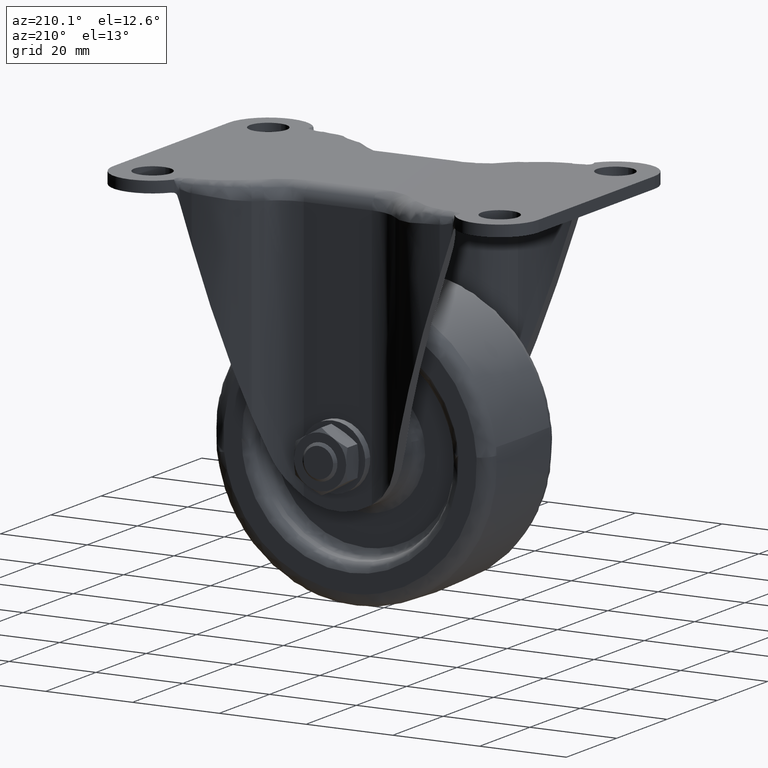
[diagram: clean part render]
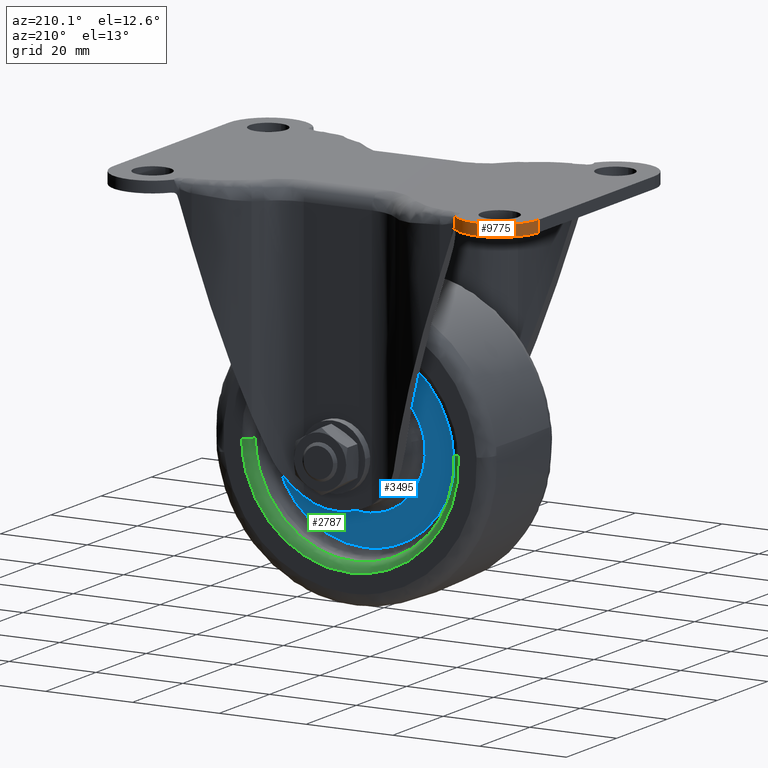
[diagram: same view with three faces highlighted in distinct colors, each labeled with its STEP entity id]
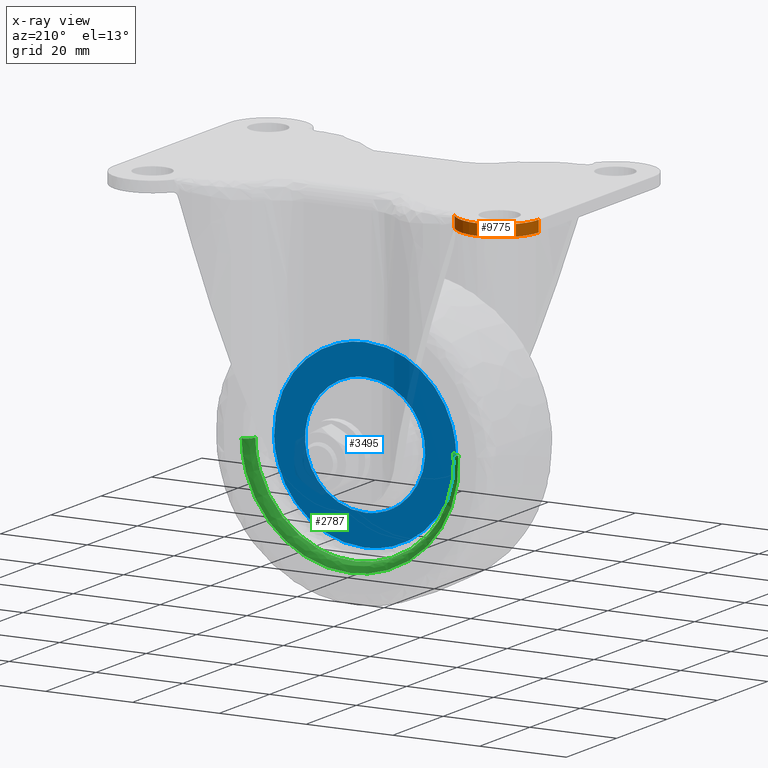
[diagram: x-ray of the same camera — body ghosted, the three highlighted faces saturated]
A machine part, auxiliary view with three faces highlighted in distinct colors.
The next image is the same camera in x-ray (body ghosted, the three faces saturated) — at least one of them is partly hidden behind the body in this view.
Their STEP definitions:

[orange] entity #9775 — the highlighted face is a freeform B-spline surface patch.
#4746=CARTESIAN_POINT('',(-32.376341283764802,27.783254136633801,0.0));
#4747=VERTEX_POINT('',#4746);
#7213=CARTESIAN_POINT('',(-32.764842154642949,28.352775125676100,-2.599999999999935));
#7214=VERTEX_POINT('',#7213);
#7220=CARTESIAN_POINT('',(-32.376341283764802,27.783254136633801,-2.678551643700455));
#7221=VERTEX_POINT('',#7220);
#7222=CARTESIAN_POINT('',(-32.376341283764802,27.783254136633801,-2.678551643700460));
#7223=CARTESIAN_POINT('',(-32.436704359270692,27.879462425141028,-2.653101375931688));
#7224=CARTESIAN_POINT('',(-32.499208282235280,27.975039823713480,-2.633665190367187));
#7225=CARTESIAN_POINT('',(-32.628639954083127,28.164876948345459,-2.607118698413021));
#7226=CARTESIAN_POINT('',(-32.695565976947741,28.259136694338469,-2.599999999999910));
#7227=CARTESIAN_POINT('',(-32.764842154642949,28.352775125676100,-2.599999999999910));
#7228=B_SPLINE_CURVE_WITH_KNOTS('',3,(#7222,#7223,#7224,#7225,#7226,#7227),.UNSPECIFIED.,.F.,.U.,(4,2,4),(0.0,0.500000000000000,1.0),.UNSPECIFIED.);
#7229=EDGE_CURVE('',#7221,#7214,#7228,.T.);
#9245=CARTESIAN_POINT('',(-49.000019999999999,23.0,-2.599999999999935));
#9246=VERTEX_POINT('',#9245);
#9247=CARTESIAN_POINT('',(-49.000019999999999,23.0,-2.599999999999935));
#9248=CARTESIAN_POINT('',(-49.000019999999999,29.509229023852267,-2.599999999999935));
#9249=CARTESIAN_POINT('',(-42.818122144332897,31.547414831638061,-2.599999999999935));
#9250=CARTESIAN_POINT('',(-36.636224288665801,33.585600639423838,-2.599999999999935));
#9251=CARTESIAN_POINT('',(-32.764842154643048,28.352775125676018,-2.599999999999935));
#9259=(BOUNDED_CURVE()B_SPLINE_CURVE(2,(#9247,#9248,#9249,#9250,#9251),.UNSPECIFIED.,.F.,.U.)B_SPLINE_CURVE_WITH_KNOTS((3,2,3),(0.0,0.500000000000000,1.0),.UNSPECIFIED.)CURVE()GEOMETRIC_REPRESENTATION_ITEM()RATIONAL_B_SPLINE_CURVE((1.0,0.810284660005801,1.0,0.810284660005801,1.0))REPRESENTATION_ITEM(''));
#9260=EDGE_CURVE('',#9246,#7214,#9259,.T.);
#9387=CARTESIAN_POINT('',(-49.000019999999999,23.0,0.0));
#9388=VERTEX_POINT('',#9387);
#9389=CARTESIAN_POINT('',(-49.000019999999999,23.0,0.0));
#9390=CARTESIAN_POINT('',(-49.000020000000006,29.775523146540504,0.0));
#9391=CARTESIAN_POINT('',(-42.488683337218028,31.649078262681329,0.0));
#9392=CARTESIAN_POINT('',(-35.977346674436063,33.522633378822171,0.0));
#9393=CARTESIAN_POINT('',(-32.376341283764802,27.783254136633801,0.0));
#9401=(BOUNDED_CURVE()B_SPLINE_CURVE(2,(#9389,#9390,#9391,#9392,#9393),.UNSPECIFIED.,.F.,.U.)B_SPLINE_CURVE_WITH_KNOTS((3,2,3),(0.0,0.500000000000000,1.0),.UNSPECIFIED.)CURVE()GEOMETRIC_REPRESENTATION_ITEM()RATIONAL_B_SPLINE_CURVE((1.0,0.798911180476210,1.0,0.798911180476210,1.0))REPRESENTATION_ITEM(''));
#9402=EDGE_CURVE('',#9388,#4747,#9401,.T.);
#9735=CARTESIAN_POINT('',(-49.000019999999999,23.0,-2.599999999999935));
#9736=CARTESIAN_POINT('',(-49.000019999999999,23.0,0.0));
#9737=QUASI_UNIFORM_CURVE('',1,(#9735,#9736),.UNSPECIFIED.,.F.,.U.);
#9738=EDGE_CURVE('',#9246,#9388,#9737,.T.);
#9746=CARTESIAN_POINT('',(-48.996489015596701,22.747918165255001,-2.745515434792966));
#9747=CARTESIAN_POINT('',(-48.996489015596701,22.747918165255001,0.068637885869824));
#9748=CARTESIAN_POINT('',(-49.197003960892403,29.904032743449871,-2.745515434792966));
#9749=CARTESIAN_POINT('',(-49.197003960892403,29.904032743449871,0.068637885869824));
#9750=CARTESIAN_POINT('',(-42.269406184082072,31.709184023058508,-2.745515434792966));
#9751=CARTESIAN_POINT('',(-42.269406184082072,31.709184023058508,0.068637885869824));
#9752=CARTESIAN_POINT('',(-35.341808407271714,33.514335302667128,-2.745515434792966));
#9753=CARTESIAN_POINT('',(-35.341808407271714,33.514335302667128,0.068637885869824));
#9754=CARTESIAN_POINT('',(-32.024552614048602,27.170362091668519,-2.745515434792966));
#9755=CARTESIAN_POINT('',(-32.024552614048602,27.170362091668519,0.068637885869824));
#9763=(BOUNDED_SURFACE()B_SPLINE_SURFACE(1,2,((#9746,#9748,#9750,#9752,#9754),(#9747,#9749,#9751,#9753,#9755)),.UNSPECIFIED.,.F.,.F.,.U.)B_SPLINE_SURFACE_WITH_KNOTS((2,2),(3,2,3),(0.0,2.814153320662790),(0.0,12.571762803175460,25.143525606350920),.UNSPECIFIED.)GEOMETRIC_REPRESENTATION_ITEM()RATIONAL_B_SPLINE_SURFACE(((1.0,0.782608156852414,1.0,0.782608156852414,1.0),(1.0,0.782608156852414,1.0,0.782608156852414,1.0)))REPRESENTATION_ITEM('')SURFACE());
#9764=CARTESIAN_POINT('',(-32.376341283764802,27.783254136633801,-2.678551643700455));
#9765=CARTESIAN_POINT('',(-32.376341283764802,27.783254136633801,0.0));
#9766=QUASI_UNIFORM_CURVE('',1,(#9764,#9765),.UNSPECIFIED.,.F.,.U.);
#9767=EDGE_CURVE('',#7221,#4747,#9766,.T.);
#9768=ORIENTED_EDGE('',*,*,#9767,.F.);
#9769=ORIENTED_EDGE('',*,*,#7229,.T.);
#9770=ORIENTED_EDGE('',*,*,#9260,.F.);
#9771=ORIENTED_EDGE('',*,*,#9738,.T.);
#9772=ORIENTED_EDGE('',*,*,#9402,.T.);
#9773=EDGE_LOOP('',(#9768,#9769,#9770,#9771,#9772));
#9774=FACE_OUTER_BOUND('',#9773,.T.);
#9775=ADVANCED_FACE('',(#9774),#9763,.T.);

[blue] entity #3495 — the highlighted face is a freeform B-spline surface patch.
#2872=CARTESIAN_POINT('',(-20.993367977213151,7.500000000000000,-53.972267995533471));
#2873=VERTEX_POINT('',#2872);
#2887=CARTESIAN_POINT('',(0.0,7.500000000000000,-75.500000000000000));
#2888=VERTEX_POINT('',#2887);
#2889=CARTESIAN_POINT('',(-20.993367977213154,7.500000000000000,-53.972267995533471));
#2890=CARTESIAN_POINT('',(-21.000000000000007,7.500000000000000,-54.236092325309514));
#2891=CARTESIAN_POINT('',(-21.0,7.500000000000000,-54.500000000000000));
#2892=CARTESIAN_POINT('',(-21.000000000000007,7.500000000000000,-75.500000000000014));
#2893=CARTESIAN_POINT('',(0.0,7.500000000000000,-75.500000000000000));
#2901=(BOUNDED_CURVE()B_SPLINE_CURVE(2,(#2889,#2890,#2891,#2892,#2893),.UNSPECIFIED.,.F.,.U.)B_SPLINE_CURVE_WITH_KNOTS((3,2,3),(0.745579891768149,0.750000000000000,1.0),.UNSPECIFIED.)CURVE()GEOMETRIC_REPRESENTATION_ITEM()RATIONAL_B_SPLINE_CURVE((0.989826157677828,0.994821521089878,1.0,0.707106781186547,1.0))REPRESENTATION_ITEM(''));
#2902=EDGE_CURVE('',#2873,#2888,#2901,.T.);
#2904=CARTESIAN_POINT('',(20.993367977213151,7.500000000000000,-55.027732004466529));
#2905=VERTEX_POINT('',#2904);
#2906=CARTESIAN_POINT('',(0.0,7.500000000000000,-75.500000000000000));
#2907=CARTESIAN_POINT('',(20.478735399599522,7.499999999999999,-75.500000000000000));
#2908=CARTESIAN_POINT('',(20.993367977213143,7.500000000000000,-55.027732004466529));
#2916=(BOUNDED_CURVE()B_SPLINE_CURVE(2,(#2906,#2907,#2908),.UNSPECIFIED.,.F.,.U.)B_SPLINE_CURVE_WITH_KNOTS((3,3),(0.0,0.245579891768150),.UNSPECIFIED.)CURVE()GEOMETRIC_REPRESENTATION_ITEM()RATIONAL_B_SPLINE_CURVE((1.0,0.712285260096670,0.989826157677828))REPRESENTATION_ITEM(''));
#2917=EDGE_CURVE('',#2888,#2905,#2916,.T.);
#2964=CARTESIAN_POINT('',(0.0,7.500000000000000,-33.500000000000000));
#2965=VERTEX_POINT('',#2964);
#2966=CARTESIAN_POINT('',(20.993367977213147,7.500000000000000,-55.027732004466529));
#2967=CARTESIAN_POINT('',(20.999999999999996,7.500000000000000,-54.763907674690486));
#2968=CARTESIAN_POINT('',(21.0,7.500000000000000,-54.500000000000000));
#2969=CARTESIAN_POINT('',(21.000000000000007,7.500000000000000,-33.500000000000000));
#2970=CARTESIAN_POINT('',(0.0,7.500000000000000,-33.500000000000000));
#2978=(BOUNDED_CURVE()B_SPLINE_CURVE(2,(#2966,#2967,#2968,#2969,#2970),.UNSPECIFIED.,.F.,.U.)B_SPLINE_CURVE_WITH_KNOTS((3,2,3),(0.245579891768149,0.250000000000000,0.500000000000000),.UNSPECIFIED.)CURVE()GEOMETRIC_REPRESENTATION_ITEM()RATIONAL_B_SPLINE_CURVE((0.989826157677828,0.994821521089878,1.0,0.707106781186547,1.0))REPRESENTATION_ITEM(''));
#2979=EDGE_CURVE('',#2905,#2965,#2978,.T.);
#2981=CARTESIAN_POINT('',(0.0,7.500000000000000,-33.500000000000000));
#2982=CARTESIAN_POINT('',(-20.478735399599401,7.500000000000000,-33.500000000000007));
#2983=CARTESIAN_POINT('',(-20.993367977213154,7.500000000000000,-53.972267995533471));
#2991=(BOUNDED_CURVE()B_SPLINE_CURVE(2,(#2981,#2982,#2983),.UNSPECIFIED.,.F.,.U.)B_SPLINE_CURVE_WITH_KNOTS((3,3),(0.500000000000000,0.745579891768148),.UNSPECIFIED.)CURVE()GEOMETRIC_REPRESENTATION_ITEM()RATIONAL_B_SPLINE_CURVE((1.0,0.712285260096671,0.989826157677826))REPRESENTATION_ITEM(''));
#2992=EDGE_CURVE('',#2965,#2873,#2991,.T.);
#3033=CARTESIAN_POINT('',(-4.930326382057424,7.500000000000108,-67.443941991830386));
#3034=VERTEX_POINT('',#3033);
#3035=CARTESIAN_POINT('',(0.0,7.500000000000000,-68.351128669312942));
#3036=VERTEX_POINT('',#3035);
#3037=CARTESIAN_POINT('',(-4.930326382057425,7.500000000000109,-67.443941991830400));
#3038=CARTESIAN_POINT('',(-2.548624973128256,7.499999999999999,-68.351128669312942));
#3039=CARTESIAN_POINT('',(0.0,7.500000000000000,-68.351128669312942));
#3047=(BOUNDED_CURVE()B_SPLINE_CURVE(2,(#3037,#3038,#3039),.UNSPECIFIED.,.F.,.U.)B_SPLINE_CURVE_WITH_KNOTS((3,3),(0.939552769405175,1.0),.UNSPECIFIED.)CURVE()GEOMETRIC_REPRESENTATION_ITEM()RATIONAL_B_SPLINE_CURVE((0.892609506672727,0.929181664250891,1.0))REPRESENTATION_ITEM(''));
#3048=EDGE_CURVE('',#3034,#3036,#3047,.T.);
#3068=CARTESIAN_POINT('',(-13.605786643651550,7.500000000000109,-51.904557392365753));
#3069=VERTEX_POINT('',#3068);
#3083=CARTESIAN_POINT('',(0.0,7.500000000000000,-40.648871330687072));
#3084=VERTEX_POINT('',#3083);
#3085=CARTESIAN_POINT('',(0.0,7.500000000000000,-40.648871330687072));
#3086=CARTESIAN_POINT('',(-11.458650174550016,7.500000000000002,-40.648871330687072));
#3087=CARTESIAN_POINT('',(-13.605786643651555,7.500000000000109,-51.904557392365746));
#3095=(BOUNDED_CURVE()B_SPLINE_CURVE(2,(#3085,#3086,#3087),.UNSPECIFIED.,.F.,.U.)B_SPLINE_CURVE_WITH_KNOTS((3,3),(0.500000000000000,0.717838633830687),.UNSPECIFIED.)CURVE()GEOMETRIC_REPRESENTATION_ITEM()RATIONAL_B_SPLINE_CURVE((1.0,0.744786165421620,0.934335795317202))REPRESENTATION_ITEM(''));
#3096=EDGE_CURVE('',#3084,#3069,#3095,.T.);
#3098=CARTESIAN_POINT('',(0.0,7.500000000000000,-68.351128669312942));
#3099=CARTESIAN_POINT('',(13.851128669312940,7.500000000000000,-68.351128669312942));
#3100=CARTESIAN_POINT('',(13.851128669312940,7.500000000000000,-54.500000000000000));
#3101=CARTESIAN_POINT('',(13.851128669312940,7.500000000000000,-40.648871330687058));
#3102=CARTESIAN_POINT('',(0.0,7.500000000000000,-40.648871330687072));
#3110=(BOUNDED_CURVE()B_SPLINE_CURVE(2,(#3098,#3099,#3100,#3101,#3102),.UNSPECIFIED.,.F.,.U.)B_SPLINE_CURVE_WITH_KNOTS((3,2,3),(0.0,0.250000000000000,0.500000000000000),.UNSPECIFIED.)CURVE()GEOMETRIC_REPRESENTATION_ITEM()RATIONAL_B_SPLINE_CURVE((1.0,0.707106781186548,1.0,0.707106781186548,1.0))REPRESENTATION_ITEM(''));
#3111=EDGE_CURVE('',#3036,#3084,#3110,.T.);
#3133=CARTESIAN_POINT('',(-13.605786643651552,7.500000000000109,-51.904557392365746));
#3134=CARTESIAN_POINT('',(-13.851128669312935,7.500000000000001,-53.190682851321654));
#3135=CARTESIAN_POINT('',(-13.851128669312940,7.500000000000000,-54.500000000000000));
#3136=CARTESIAN_POINT('',(-13.851128669312935,7.499999999999999,-64.046023458309463));
#3137=CARTESIAN_POINT('',(-4.930326382057424,7.500000000000108,-67.443941991830386));
#3145=(BOUNDED_CURVE()B_SPLINE_CURVE(2,(#3133,#3134,#3135,#3136,#3137),.UNSPECIFIED.,.F.,.U.)B_SPLINE_CURVE_WITH_KNOTS((3,2,3),(0.717838633830686,0.750000000000000,0.939552769405175),.UNSPECIFIED.)CURVE()GEOMETRIC_REPRESENTATION_ITEM()RATIONAL_B_SPLINE_CURVE((0.934335795317201,0.962320615764926,1.0,0.777925116935657,0.892609506672727))REPRESENTATION_ITEM(''));
#3146=EDGE_CURVE('',#3069,#3034,#3145,.T.);
#3478=CARTESIAN_POINT('',(-23.090605750899741,7.500000000000000,-31.402100081404150));
#3479=CARTESIAN_POINT('',(-23.090605750899741,7.500000000000000,-77.597901045123635));
#3480=CARTESIAN_POINT('',(23.090606501681080,7.500000000000000,-31.402100081404150));
#3481=CARTESIAN_POINT('',(23.090606501681080,7.500000000000000,-77.597901045123649));
#3482=B_SPLINE_SURFACE_WITH_KNOTS('',1,1,((#3478,#3480),(#3479,#3481)),.UNSPECIFIED.,.F.,.F.,.U.,(2,2),(2,2),(0.0,46.195800963719499),(0.0,46.181212252580821),.UNSPECIFIED.);
#3483=ORIENTED_EDGE('',*,*,#2902,.F.);
#3484=ORIENTED_EDGE('',*,*,#2992,.F.);
#3485=ORIENTED_EDGE('',*,*,#2979,.F.);
#3486=ORIENTED_EDGE('',*,*,#2917,.F.);
#3487=EDGE_LOOP('',(#3483,#3484,#3485,#3486));
#3488=FACE_OUTER_BOUND('',#3487,.T.);
#3489=ORIENTED_EDGE('',*,*,#3111,.T.);
#3490=ORIENTED_EDGE('',*,*,#3096,.T.);
#3491=ORIENTED_EDGE('',*,*,#3146,.T.);
#3492=ORIENTED_EDGE('',*,*,#3048,.T.);
#3493=EDGE_LOOP('',(#3489,#3490,#3491,#3492));
#3494=FACE_BOUND('',#3493,.T.);
#3495=ADVANCED_FACE('',(#3488,#3494),#3482,.F.);

[green] entity #2787 — the highlighted face is a freeform B-spline surface patch.
#746=CARTESIAN_POINT('',(8.545397186707714,11.500000000038311,-75.853598921990283));
#747=VERTEX_POINT('',#746);
#748=CARTESIAN_POINT('',(22.998184016687102,11.500000000539449,-54.789018917370427));
#749=VERTEX_POINT('',#748);
#750=CARTESIAN_POINT('',(8.545397186707714,11.500000000038318,-75.853598921990283));
#751=CARTESIAN_POINT('',(22.805179231667115,11.500000000174653,-70.147043234797664));
#752=CARTESIAN_POINT('',(22.998184016687102,11.500000000539451,-54.789018917370427));
#760=(BOUNDED_CURVE()B_SPLINE_CURVE(2,(#750,#751,#752),.UNSPECIFIED.,.F.,.U.)B_SPLINE_CURVE_WITH_KNOTS((3,3),(0.063083130650058,0.247784295920913),.UNSPECIFIED.)CURVE()GEOMETRIC_REPRESENTATION_ITEM()RATIONAL_B_SPLINE_CURVE((0.889485049958442,0.782299085542942,0.994854295642135))REPRESENTATION_ITEM(''));
#761=EDGE_CURVE('',#747,#749,#760,.T.);
#834=CARTESIAN_POINT('',(-16.957380341688701,11.499999999999810,-70.038573034461820));
#835=VERTEX_POINT('',#834);
#841=CARTESIAN_POINT('',(-22.944010498329941,11.500000000562840,-52.896135213764737));
#842=VERTEX_POINT('',#841);
#843=CARTESIAN_POINT('',(-22.944010498329934,11.500000000562835,-52.896135213764751));
#844=CARTESIAN_POINT('',(-23.000000000000004,11.499999999999998,-53.697090334881551));
#845=CARTESIAN_POINT('',(-23.0,11.500000000000000,-54.500000000000000));
#846=CARTESIAN_POINT('',(-23.000000000000007,11.500000000000000,-63.444209473606314));
#847=CARTESIAN_POINT('',(-16.957380341688783,11.499999999999998,-70.038573034461891));
#855=(BOUNDED_CURVE()B_SPLINE_CURVE(2,(#843,#844,#845,#846,#847),.UNSPECIFIED.,.F.,.U.)B_SPLINE_CURVE_WITH_KNOTS((3,2,3),(0.737833686535133,0.750000000000000,0.868415193587801),.UNSPECIFIED.)CURVE()GEOMETRIC_REPRESENTATION_ITEM()RATIONAL_B_SPLINE_CURVE((0.972879876387064,0.985746277152727,1.0,0.861267971174603,0.853959782750709))REPRESENTATION_ITEM(''));
#856=EDGE_CURVE('',#842,#835,#855,.T.);
#905=CARTESIAN_POINT('',(0.0,11.500000000000000,-77.500000000000000));
#906=VERTEX_POINT('',#905);
#907=CARTESIAN_POINT('',(0.0,11.500000000000000,-77.500000000000000));
#908=CARTESIAN_POINT('',(4.431300730295765,11.500000000000002,-77.500000000000000));
#909=CARTESIAN_POINT('',(8.545397186707714,11.500000000038318,-75.853598921990283));
#917=(BOUNDED_CURVE()B_SPLINE_CURVE(2,(#907,#908,#909),.UNSPECIFIED.,.F.,.U.)B_SPLINE_CURVE_WITH_KNOTS((3,3),(0.0,0.063083130650058),.UNSPECIFIED.)CURVE()GEOMETRIC_REPRESENTATION_ITEM()RATIONAL_B_SPLINE_CURVE((1.0,0.926093515244300,0.889485049958442))REPRESENTATION_ITEM(''));
#918=EDGE_CURVE('',#906,#747,#917,.T.);
#920=CARTESIAN_POINT('',(-16.957380341688783,11.499999999999998,-70.038573034461891));
#921=CARTESIAN_POINT('',(-10.120243619556936,11.500000000000000,-77.500000000000000));
#922=CARTESIAN_POINT('',(0.0,11.500000000000000,-77.500000000000000));
#930=(BOUNDED_CURVE()B_SPLINE_CURVE(2,(#920,#921,#922),.UNSPECIFIED.,.F.,.U.)B_SPLINE_CURVE_WITH_KNOTS((3,3),(0.868415193587801,1.0),.UNSPECIFIED.)CURVE()GEOMETRIC_REPRESENTATION_ITEM()RATIONAL_B_SPLINE_CURVE((0.853959782750709,0.845838810011944,1.0))REPRESENTATION_ITEM(''));
#931=EDGE_CURVE('',#835,#906,#930,.T.);
#2692=CARTESIAN_POINT('',(-22.948840080812520,11.360925635659656,-52.895798882157273));
#2693=CARTESIAN_POINT('',(-22.994751583290057,11.360925635659656,-53.552584191996452));
#2694=CARTESIAN_POINT('',(-23.003024913640953,11.360925635659655,-54.210920246975355));
#2695=CARTESIAN_POINT('',(-23.292104666665590,11.360925635659662,-77.213945160616333));
#2696=CARTESIAN_POINT('',(-0.289079753024632,11.360925635659655,-77.503024913640942));
#2697=CARTESIAN_POINT('',(22.713945160616323,11.360925635659662,-77.792104666665594));
#2698=CARTESIAN_POINT('',(23.003024913640953,11.360925635659655,-54.789079753024623));
#2699=CARTESIAN_POINT('',(-22.789313383162323,13.655077925926404,-52.906950334945094));
#2700=CARTESIAN_POINT('',(-22.834905736160017,13.655077925926408,-53.559170063640529));
#2701=CARTESIAN_POINT('',(-22.843121555235193,13.655077925926408,-54.212929757617104));
#2702=CARTESIAN_POINT('',(-23.130191797618100,13.655077925926404,-77.056051312852304));
#2703=CARTESIAN_POINT('',(-0.287070242382910,13.655077925926408,-77.343121555235228));
#2704=CARTESIAN_POINT('',(22.556051312852279,13.655077925926404,-77.630191797618110));
#2705=CARTESIAN_POINT('',(22.843121555235193,13.655077925926408,-54.787070242382924));
#2706=CARTESIAN_POINT('',(-25.077880728933529,13.495158512972493,-52.746971779104541));
#2707=CARTESIAN_POINT('',(-25.128051595049776,13.495158512972480,-53.464689258796831));
#2708=CARTESIAN_POINT('',(-25.137092469927989,13.495158512972489,-54.184101351442060));
#2709=CARTESIAN_POINT('',(-25.452991118485944,13.495158512972480,-79.321193821370059));
#2710=CARTESIAN_POINT('',(-0.315898648557954,13.495158512972489,-79.637092469928007));
#2711=CARTESIAN_POINT('',(24.821193821370041,13.495158512972480,-79.952991118485940));
#2712=CARTESIAN_POINT('',(25.137092469927989,13.495158512972489,-54.815898648557948));
#2720=(BOUNDED_SURFACE()B_SPLINE_SURFACE(2,2,((#2692,#2699,#2706),(#2693,#2700,#2707),(#2694,#2701,#2708),(#2695,#2702,#2709),(#2696,#2703,#2710),(#2697,#2704,#2711),(#2698,#2705,#2712)),.UNSPECIFIED.,.F.,.F.,.U.)B_SPLINE_SURFACE_WITH_KNOTS((3,2,2,3),(3,3),(0.0,1.666069896258348,43.317857024956680,84.969644153655011),(0.0,3.644751786009083),.UNSPECIFIED.)GEOMETRIC_REPRESENTATION_ITEM()RATIONAL_B_SPLINE_SURFACE(((0.889999329620975,0.584039433652059,0.889999935545600),(0.899812900972104,0.590479340361268,0.899813513577953),(0.910479825469178,0.597479238377745,0.910480445337225),(0.643806458722800,0.422481621075077,0.643806897035700),(0.910479825469178,0.597479238377745,0.910480445337225),(0.643806458722800,0.422481621075077,0.643806897035700),(0.910479825469178,0.597479238377745,0.910480445337225)))REPRESENTATION_ITEM('')SURFACE());
#2721=CARTESIAN_POINT('',(-24.939141844679462,13.500000000000000,-52.756668710557413));
#2722=VERTEX_POINT('',#2721);
#2723=CARTESIAN_POINT('',(0.0,13.500000000000000,-79.500000000000000));
#2724=VERTEX_POINT('',#2723);
#2725=CARTESIAN_POINT('',(-24.939141844679465,13.499999999999998,-52.756668710557406));
#2726=CARTESIAN_POINT('',(-25.0,13.500000000000002,-53.627272102982779));
#2727=CARTESIAN_POINT('',(-25.0,13.500000000000000,-54.500000000000000));
#2728=CARTESIAN_POINT('',(-25.000000000000004,13.500000000000000,-79.500000000000000));
#2729=CARTESIAN_POINT('',(0.0,13.500000000000000,-79.500000000000000));
#2737=(BOUNDED_CURVE()B_SPLINE_CURVE(2,(#2725,#2726,#2727,#2728,#2729),.UNSPECIFIED.,.F.,.U.)B_SPLINE_CURVE_WITH_KNOTS((3,2,3),(0.737833686533081,0.750000000000000,1.0),.UNSPECIFIED.)CURVE()GEOMETRIC_REPRESENTATION_ITEM()RATIONAL_B_SPLINE_CURVE((0.972879876382724,0.985746277150323,1.0,0.707106781186547,1.0))REPRESENTATION_ITEM(''));
#2738=EDGE_CURVE('',#2722,#2724,#2737,.T.);
#2739=ORIENTED_EDGE('',*,*,#2738,.F.);
#2740=CARTESIAN_POINT('',(-22.944010498329934,11.500000000562835,-52.896135213764751));
#2741=CARTESIAN_POINT('',(-22.944010499452872,13.499999997351674,-52.896135213686343));
#2742=CARTESIAN_POINT('',(-24.939141844679465,13.499999999999998,-52.756668710557413));
#2750=(BOUNDED_CURVE()B_SPLINE_CURVE(2,(#2740,#2741,#2742),.UNSPECIFIED.,.F.,.U.)B_SPLINE_CURVE_WITH_KNOTS((3,3),(-1.725134642704630,-0.274865358076109),.UNSPECIFIED.)CURVE()GEOMETRIC_REPRESENTATION_ITEM()RATIONAL_B_SPLINE_CURVE((0.863472075171398,0.610566960198713,0.863472074899100))REPRESENTATION_ITEM(''));
#2751=EDGE_CURVE('',#842,#2722,#2750,.T.);
#2752=ORIENTED_EDGE('',*,*,#2751,.F.);
#2753=ORIENTED_EDGE('',*,*,#856,.T.);
#2754=ORIENTED_EDGE('',*,*,#931,.T.);
#2755=ORIENTED_EDGE('',*,*,#918,.T.);
#2756=ORIENTED_EDGE('',*,*,#761,.T.);
#2757=CARTESIAN_POINT('',(24.998026104134901,13.500000000000000,-54.814150997209040));
#2758=VERTEX_POINT('',#2757);
#2759=CARTESIAN_POINT('',(22.998184016687098,11.500000000539448,-54.789018917370420));
#2760=CARTESIAN_POINT('',(22.998184017766580,13.499999998082293,-54.789018917330679));
#2761=CARTESIAN_POINT('',(24.998026104134890,13.500000000000002,-54.814150997209047));
#2769=(BOUNDED_CURVE()B_SPLINE_CURVE(2,(#2759,#2760,#2761),.UNSPECIFIED.,.F.,.U.)B_SPLINE_CURVE_WITH_KNOTS((3,3),(-1.725134642728610,-0.274865357701484),.UNSPECIFIED.)CURVE()GEOMETRIC_REPRESENTATION_ITEM()RATIONAL_B_SPLINE_CURVE((0.883342149455678,0.624617224401689,0.883342149302223))REPRESENTATION_ITEM(''));
#2770=EDGE_CURVE('',#749,#2758,#2769,.T.);
#2771=ORIENTED_EDGE('',*,*,#2770,.T.);
#2772=CARTESIAN_POINT('',(0.0,13.500000000000000,-79.500000000000000));
#2773=CARTESIAN_POINT('',(24.687798247411717,13.500000000000000,-79.500000000000000));
#2774=CARTESIAN_POINT('',(24.998026104134894,13.499999999999996,-54.814150997209040));
#2782=(BOUNDED_CURVE()B_SPLINE_CURVE(2,(#2772,#2773,#2774),.UNSPECIFIED.,.F.,.U.)B_SPLINE_CURVE_WITH_KNOTS((3,3),(0.0,0.247784295919797),.UNSPECIFIED.)CURVE()GEOMETRIC_REPRESENTATION_ITEM()RATIONAL_B_SPLINE_CURVE((1.0,0.709702639986503,0.994854295639567))REPRESENTATION_ITEM(''));
#2783=EDGE_CURVE('',#2724,#2758,#2782,.T.);
#2784=ORIENTED_EDGE('',*,*,#2783,.F.);
#2785=EDGE_LOOP('',(#2739,#2752,#2753,#2754,#2755,#2756,#2771,#2784));
#2786=FACE_OUTER_BOUND('',#2785,.T.);
#2787=ADVANCED_FACE('',(#2786),#2720,.T.);